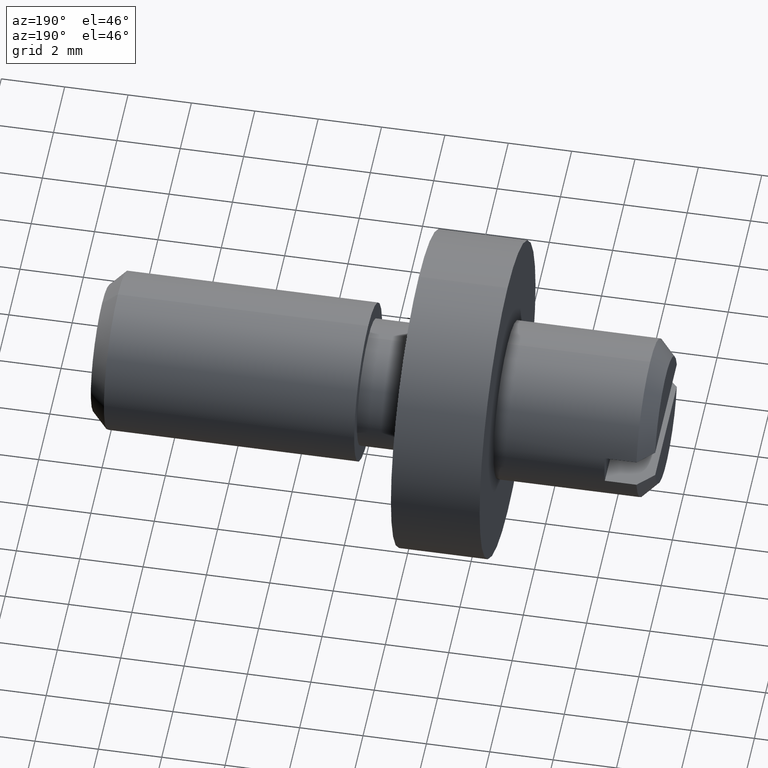
[diagram: clean part render]
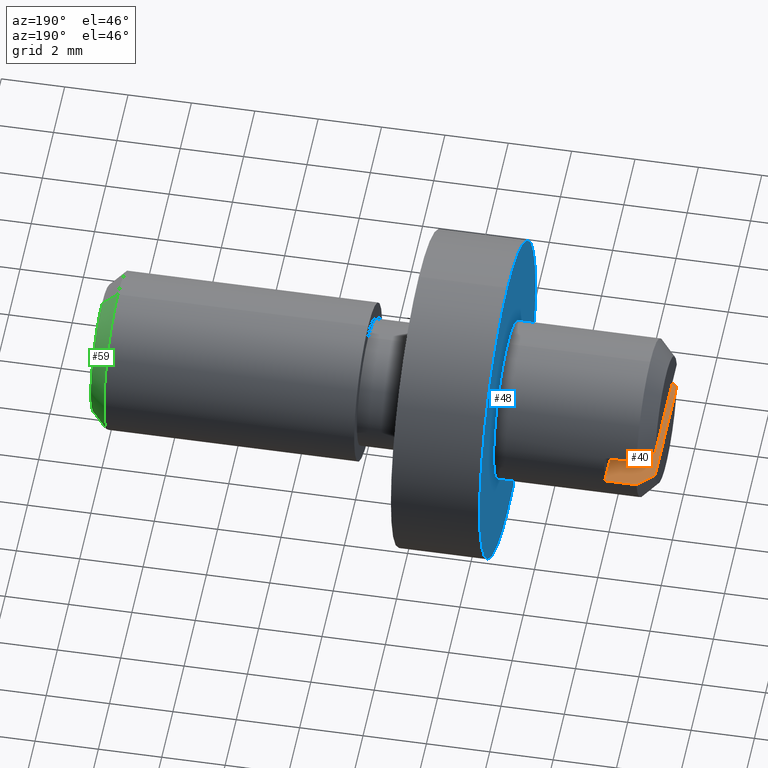
[diagram: same view with three faces highlighted in distinct colors, each labeled with its STEP entity id]
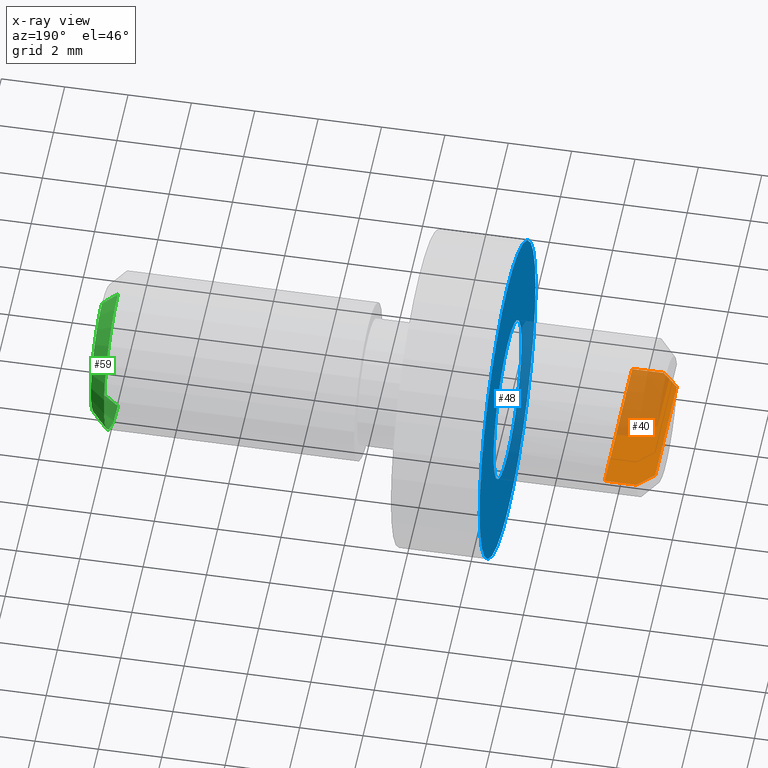
[diagram: x-ray of the same camera — body ghosted, the three highlighted faces saturated]
A machine part, auxiliary view with three faces highlighted in distinct colors.
The next image is the same camera in x-ray (body ghosted, the three faces saturated) — at least one of them is partly hidden behind the body in this view.
Their STEP definitions:

[orange] entity #40 — the highlighted planar face has unit normal (0, -0, 1).
#40=ADVANCED_FACE('',(#62),#61,.T.);
#61=PLANE('',#277);
#62=FACE_OUTER_BOUND('',#278,.T.);
#274=CARTESIAN_POINT('',(-1.79500000000E+01,-2.93938769135E+00,-5.00000000000E-01));
#275=DIRECTION('',(0.00000000000E+00,-0.00000000000E+00,1.00000000000E+00));
#276=DIRECTION('',(1.00000000000E+00,0.00000000000E+00,-0.00000000000E+00));
#277=AXIS2_PLACEMENT_3D('',#274,#275,#276);
#278=EDGE_LOOP('',(#406,#407,#408,#409,#410,#411));
#406=ORIENTED_EDGE('',*,*,#498,.T.);
#407=ORIENTED_EDGE('',*,*,#499,.F.);
#408=ORIENTED_EDGE('',*,*,#500,.T.);
#409=ORIENTED_EDGE('',*,*,#501,.F.);
#410=ORIENTED_EDGE('',*,*,#502,.T.);
#411=ORIENTED_EDGE('',*,*,#503,.T.);
#498=EDGE_CURVE('',#544,#545,#546,.T.);
#499=EDGE_CURVE('',#552,#545,#553,.T.);
#500=EDGE_CURVE('',#552,#559,#560,.T.);
#501=EDGE_CURVE('',#566,#559,#567,.T.);
#502=EDGE_CURVE('',#566,#573,#574,.T.);
#503=EDGE_CURVE('',#573,#544,#580,.T.);
#544=VERTEX_POINT('',#850);
#545=VERTEX_POINT('',#851);
#546=(BOUNDED_CURVE() B_SPLINE_CURVE(3,(#852,#853,#854,#855),.UNSPECIFIED.,.F.,.F.) B_SPLINE_CURVE_WITH_KNOTS((4,4),(4.15931936448E-03,4.87567610379E-03),.UNSPECIFIED.) CURVE() GEOMETRIC_REPRESENTATION_ITEM() RATIONAL_B_SPLINE_CURVE((1.00000000000E+00,1.00000000000E+00,1.00000000000E+00,1.00000000000E+00)) REPRESENTATION_ITEM('') );
#552=VERTEX_POINT('',#856);
#553=LINE('',#857,#858);
#559=VERTEX_POINT('',#860);
#560=(BOUNDED_CURVE() B_SPLINE_CURVE(3,(#861,#862,#863,#864),.UNSPECIFIED.,.F.,.F.) B_SPLINE_CURVE_WITH_KNOTS((4,4),(9.83560853679E-03,1.05511258395E-02),.UNSPECIFIED.) CURVE() GEOMETRIC_REPRESENTATION_ITEM() RATIONAL_B_SPLINE_CURVE((1.00000000000E+00,1.00000000000E+00,1.00000000000E+00,1.00000000000E+00)) REPRESENTATION_ITEM('') );
#566=VERTEX_POINT('',#865);
#567=LINE('',#866,#867);
#573=VERTEX_POINT('',#869);
#574=LINE('',#870,#871);
#580=LINE('',#873,#874);
#850=CARTESIAN_POINT('',(-1.73000000000E+01,2.44948974278E+00,-5.00000000000E-01));
#851=CARTESIAN_POINT('',(-1.78000000000E+01,1.93649167311E+00,-5.00000000000E-01));
#852=CARTESIAN_POINT('',(-1.73000000000E+01,2.44948974279E+00,-5.00000000000E-01));
#853=CARTESIAN_POINT('',(-1.74671155519E+01,2.27892814689E+00,-5.00000000000E-01));
#854=CARTESIAN_POINT('',(-1.76338976905E+01,2.10804140066E+00,-5.00000000000E-01));
#855=CARTESIAN_POINT('',(-1.78000000000E+01,1.93649167311E+00,-5.00000000000E-01));
#856=CARTESIAN_POINT('',(-1.78000000000E+01,-1.93649167311E+00,-5.00000000000E-01));
#857=CARTESIAN_POINT('',(-1.78000000000E+01,-1.93649167311E+00,-5.00000000000E-01));
#858=VECTOR('',#859,3.87298334622E+00);
#859=DIRECTION('',(0.00000000000E+00,1.00000000000E+00,0.00000000000E+00));
#860=CARTESIAN_POINT('',(-1.73000000000E+01,-2.44948974278E+00,-5.00000000000E-01));
#861=CARTESIAN_POINT('',(-1.78000000000E+01,-1.93649167311E+00,-5.00000000000E-01));
#862=CARTESIAN_POINT('',(-1.76339011684E+01,-2.10803780871E+00,-5.00000000000E-01));
#863=CARTESIAN_POINT('',(-1.74671183351E+01,-2.27892530624E+00,-5.00000000000E-01));
#864=CARTESIAN_POINT('',(-1.73000000000E+01,-2.44948974279E+00,-5.00000000000E-01));
#865=CARTESIAN_POINT('',(-1.63000000000E+01,-2.44948974278E+00,-5.00000000000E-01));
#866=CARTESIAN_POINT('',(-1.63000000000E+01,-2.44948974278E+00,-5.00000000000E-01));
#867=VECTOR('',#868,1.00000000000E+00);
#868=DIRECTION('',(-1.00000000000E+00,0.00000000000E+00,0.00000000000E+00));
#869=CARTESIAN_POINT('',(-1.63000000000E+01,2.44948974278E+00,-5.00000000000E-01));
#870=CARTESIAN_POINT('',(-1.63000000000E+01,-2.44948974278E+00,-5.00000000000E-01));
#871=VECTOR('',#872,4.89897948556E+00);
#872=DIRECTION('',(0.00000000000E+00,1.00000000000E+00,0.00000000000E+00));
#873=CARTESIAN_POINT('',(-1.63000000000E+01,2.44948974278E+00,-5.00000000000E-01));
#874=VECTOR('',#875,1.00000000000E+00);
#875=DIRECTION('',(-1.00000000000E+00,0.00000000000E+00,0.00000000000E+00));

[blue] entity #48 — the highlighted planar face has unit normal (1, 0, 0).
#48=ADVANCED_FACE('',(#144,#145),#143,.F.);
#143=PLANE('',#325);
#144=FACE_OUTER_BOUND('',#326,.T.);
#145=FACE_BOUND('',#327,.T.);
#322=CARTESIAN_POINT('',(-1.28000000000E+01,-1.03923048454E+01,1.15000000000E+01));
#323=DIRECTION('',(1.00000000000E+00,0.00000000000E+00,0.00000000000E+00));
#324=DIRECTION('',(0.00000000000E+00,0.00000000000E+00,-1.00000000000E+00));
#325=AXIS2_PLACEMENT_3D('',#322,#323,#324);
#326=EDGE_LOOP('',(#437,#438));
#327=EDGE_LOOP('',(#439,#440));
#437=ORIENTED_EDGE('',*,*,#524,.T.);
#438=ORIENTED_EDGE('',*,*,#525,.T.);
#439=ORIENTED_EDGE('',*,*,#526,.F.);
#440=ORIENTED_EDGE('',*,*,#527,.F.);
#524=EDGE_CURVE('',#723,#724,#725,.T.);
#525=EDGE_CURVE('',#724,#723,#731,.T.);
#526=EDGE_CURVE('',#737,#738,#739,.T.);
#527=EDGE_CURVE('',#738,#737,#745,.T.);
#723=VERTEX_POINT('',#969);
#724=VERTEX_POINT('',#970);
#725=CIRCLE('',#974,5.00000000000E+00);
#731=CIRCLE('',#978,5.00000000000E+00);
#737=VERTEX_POINT('',#979);
#738=VERTEX_POINT('',#980);
#739=CIRCLE('',#984,2.50000000001E+00);
#745=CIRCLE('',#988,2.50000000001E+00);
#969=CARTESIAN_POINT('',(-1.28000000000E+01,6.12303176911E-16,-5.00000000000E+00));
#970=CARTESIAN_POINT('',(-1.28000000000E+01,2.96059473233E-16,5.00000000000E+00));
#971=CARTESIAN_POINT('',(-1.28000000000E+01,0.00000000000E+00,0.00000000000E+00));
#972=DIRECTION('',(-1.00000000000E+00,0.00000000000E+00,0.00000000000E+00));
#973=DIRECTION('',(-0.00000000000E+00,-0.00000000000E+00,-1.00000000000E+00));
#974=AXIS2_PLACEMENT_3D('',#971,#972,#973);
#975=CARTESIAN_POINT('',(-1.28000000000E+01,0.00000000000E+00,0.00000000000E+00));
#976=DIRECTION('',(-1.00000000000E+00,0.00000000000E+00,0.00000000000E+00));
#977=DIRECTION('',(-0.00000000000E+00,-0.00000000000E+00,-1.00000000000E+00));
#978=AXIS2_PLACEMENT_3D('',#975,#976,#977);
#979=CARTESIAN_POINT('',(-1.28000000000E+01,0.00000000000E+00,-2.50000000001E+00));
#980=CARTESIAN_POINT('',(-1.28000000000E+01,-4.54181325074E-16,2.50000000001E+00));
#981=CARTESIAN_POINT('',(-1.28000000000E+01,0.00000000000E+00,0.00000000000E+00));
#982=DIRECTION('',(-1.00000000000E+00,0.00000000000E+00,0.00000000000E+00));
#983=DIRECTION('',(-0.00000000000E+00,-5.92118946466E-17,1.00000000000E+00));
#984=AXIS2_PLACEMENT_3D('',#981,#982,#983);
#985=CARTESIAN_POINT('',(-1.28000000000E+01,0.00000000000E+00,0.00000000000E+00));
#986=DIRECTION('',(-1.00000000000E+00,0.00000000000E+00,0.00000000000E+00));
#987=DIRECTION('',(-0.00000000000E+00,-5.92118946466E-17,1.00000000000E+00));
#988=AXIS2_PLACEMENT_3D('',#985,#986,#987);

[green] entity #59 — the highlighted face is a freeform B-spline surface patch.
#59=ADVANCED_FACE('',(#255),#254,.T.);
#254=( BOUNDED_SURFACE() B_SPLINE_SURFACE( 2,1,((#384,#385),(#386,#387),(#388,#389),(#390,#391),(#392,#393)), .UNSPECIFIED.,.F.,.F.,.F.) B_SPLINE_SURFACE_WITH_KNOTS((3,2,3),(2,2),(0.00000000000E+00,5.00000000000E-01,1.00000000000E+00),(0.00000000000E+00,1.00000000000E+00), .UNSPECIFIED. ) GEOMETRIC_REPRESENTATION_ITEM() RATIONAL_B_SPLINE_SURFACE(((1.00000000000E+00,1.00000000000E+00),(7.07106781187E-01,7.07106781187E-01),(1.00000000000E+00,1.00000000000E+00),(7.07106781187E-01,7.07106781187E-01),(1.00000000000E+00,1.00000000000E+00))) REPRESENTATION_ITEM('') SURFACE() );
#255=FACE_OUTER_BOUND('',#394,.T.);
#384=CARTESIAN_POINT('',(2.00000000000E+00,-1.37772764904E-16,0.00000000000E+00));
#385=CARTESIAN_POINT('',(-1.53553390593E+00,1.35058920675E-15,3.53553390593E+00));
#386=CARTESIAN_POINT('',(2.00000000000E+00,-1.37772764904E-16,0.00000000000E+00));
#387=CARTESIAN_POINT('',(-1.53553390593E+00,3.53553390593E+00,3.53553390593E+00));
#388=CARTESIAN_POINT('',(2.00000000000E+00,-1.37772764904E-16,0.00000000000E+00));
#389=CARTESIAN_POINT('',(-1.53553390593E+00,3.53553390593E+00,-1.27187295760E-15));
#390=CARTESIAN_POINT('',(2.00000000000E+00,-1.37772764904E-16,0.00000000000E+00));
#391=CARTESIAN_POINT('',(-1.53553390593E+00,3.53553390593E+00,-3.53553390593E+00));
#392=CARTESIAN_POINT('',(2.00000000000E+00,-1.37772764904E-16,0.00000000000E+00));
#393=CARTESIAN_POINT('',(-1.53553390593E+00,-1.19315670844E-15,-3.53553390593E+00));
#394=EDGE_LOOP('',(#490,#491,#492,#493));
#490=ORIENTED_EDGE('',*,*,#539,.F.);
#491=ORIENTED_EDGE('',*,*,#542,.F.);
#492=ORIENTED_EDGE('',*,*,#515,.T.);
#493=ORIENTED_EDGE('',*,*,#543,.T.);
#515=EDGE_CURVE('',#654,#653,#661,.T.);
#539=EDGE_CURVE('',#812,#819,#820,.T.);
#542=EDGE_CURVE('',#654,#812,#838,.T.);
#543=EDGE_CURVE('',#653,#819,#844,.T.);
#653=VERTEX_POINT('',#919);
#654=VERTEX_POINT('',#920);
#661=CIRCLE('',#928,2.00000000000E+00);
#812=VERTEX_POINT('',#1018);
#819=VERTEX_POINT('',#1021);
#820=CIRCLE('',#1025,2.50000000000E+00);
#838=(BOUNDED_CURVE() B_SPLINE_CURVE(1,(#1032,#1033),.UNSPECIFIED.,.F.,.F.) B_SPLINE_CURVE_WITH_KNOTS((2,2),(5.65685428679E-01,7.07106782155E-01),.UNSPECIFIED.) CURVE() GEOMETRIC_REPRESENTATION_ITEM() RATIONAL_B_SPLINE_CURVE((1.00000000000E+00,1.00000000000E+00)) REPRESENTATION_ITEM('') );
#844=(BOUNDED_CURVE() B_SPLINE_CURVE(1,(#1034,#1035),.UNSPECIFIED.,.F.,.F.) B_SPLINE_CURVE_WITH_KNOTS((2,2),(5.65685424949E-01,7.07106780467E-01),.UNSPECIFIED.) CURVE() GEOMETRIC_REPRESENTATION_ITEM() RATIONAL_B_SPLINE_CURVE((7.50000000000E-01,7.50000000000E-01)) REPRESENTATION_ITEM('') );
#919=CARTESIAN_POINT('',(0.00000000000E+00,7.40148683083E-17,-2.00000000000E+00));
#920=CARTESIAN_POINT('',(0.00000000000E+00,-4.66965875689E-16,2.00000000000E+00));
#925=CARTESIAN_POINT('',(0.00000000000E+00,0.00000000000E+00,0.00000000000E+00));
#926=DIRECTION('',(-1.00000000000E+00,0.00000000000E+00,0.00000000000E+00));
#927=DIRECTION('',(-0.00000000000E+00,-1.11022302463E-16,1.00000000000E+00));
#928=AXIS2_PLACEMENT_3D('',#925,#926,#927);
#1018=CARTESIAN_POINT('',(-5.00000000000E-01,1.48029736617E-16,2.50000000000E+00));
#1021=CARTESIAN_POINT('',(-5.00000000000E-01,3.06151588456E-16,-2.50000000000E+00));
#1022=CARTESIAN_POINT('',(-5.00000000000E-01,0.00000000000E+00,0.00000000000E+00));
#1023=DIRECTION('',(-1.00000000000E+00,0.00000000000E+00,0.00000000000E+00));
#1024=DIRECTION('',(-0.00000000000E+00,-0.00000000000E+00,-1.00000000000E+00));
#1025=AXIS2_PLACEMENT_3D('',#1022,#1023,#1024);
#1032=CARTESIAN_POINT('',(-1.31883400867E-08,7.04171915061E-16,2.00000001319E+00));
#1033=CARTESIAN_POINT('',(-5.00000003425E-01,9.14658079555E-16,2.50000000343E+00));
#1034=CARTESIAN_POINT('',(0.00000000000E+00,-9.80957628937E-16,-2.00000000000E+00));
#1035=CARTESIAN_POINT('',(-4.99999997456E-01,-1.19175384387E-15,-2.49999999746E+00));